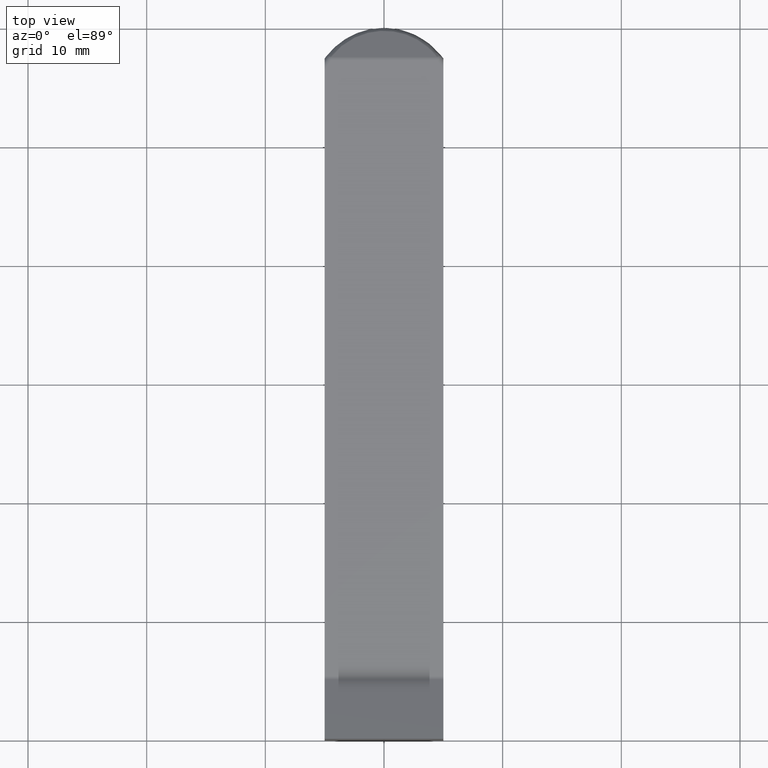
[diagram: clean part render]
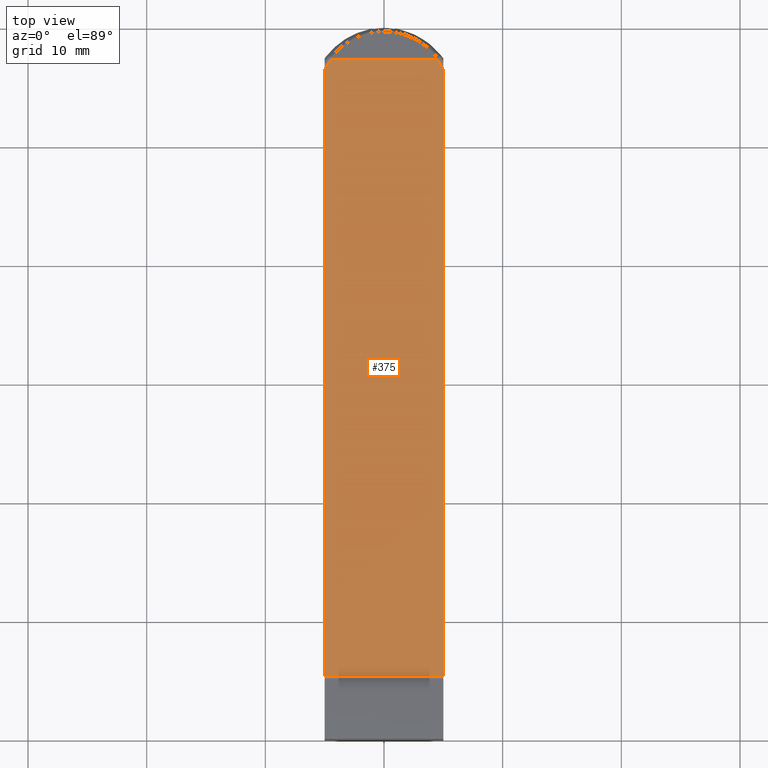
[diagram: same view with one face highlighted and labeled with its STEP entity id]
A machine part, top view. The second image highlights one B-rep face of the part: STEP entity #375.
In plain terms, the highlighted planar face has unit normal (0, -0, 1).
Its self-contained STEP definition (entity closure, byte-faithful):
#47=CIRCLE('',#417,5.61029034892354);
#48=CIRCLE('',#419,5.61029034892354);
#80=FACE_OUTER_BOUND('',#104,.T.);
#104=EDGE_LOOP('',(#326,#327,#328,#329,#330,#331));
#117=LINE('',#617,#139);
#120=LINE('',#690,#142);
#128=LINE('',#770,#150);
#130=LINE('',#773,#152);
#139=VECTOR('',#466,10.);
#142=VECTOR('',#507,10.);
#150=VECTOR('',#559,10.);
#152=VECTOR('',#563,10.);
#163=VERTEX_POINT('',#605);
#164=VERTEX_POINT('',#616);
#166=VERTEX_POINT('',#622);
#171=VERTEX_POINT('',#664);
#173=VERTEX_POINT('',#672);
#175=VERTEX_POINT('',#688);
#196=EDGE_CURVE('',#163,#164,#117,.T.);
#208=EDGE_CURVE('',#166,#163,#47,.T.);
#210=EDGE_CURVE('',#173,#171,#48,.T.);
#214=EDGE_CURVE('',#175,#173,#120,.T.);
#236=EDGE_CURVE('',#171,#166,#128,.T.);
#238=EDGE_CURVE('',#164,#175,#130,.T.);
#326=ORIENTED_EDGE('',*,*,#210,.F.);
#327=ORIENTED_EDGE('',*,*,#214,.F.);
#328=ORIENTED_EDGE('',*,*,#238,.F.);
#329=ORIENTED_EDGE('',*,*,#196,.F.);
#330=ORIENTED_EDGE('',*,*,#208,.F.);
#331=ORIENTED_EDGE('',*,*,#236,.F.);
#352=PLANE('',#445);
#375=ADVANCED_FACE('',(#80),#352,.T.);
#417=AXIS2_PLACEMENT_3D('',#669,#494,#495);
#419=AXIS2_PLACEMENT_3D('',#683,#498,#499);
#445=AXIS2_PLACEMENT_3D('',#772,#561,#562);
#466=DIRECTION('',(0.,-1.,-3.20587813129454E-16));
#494=DIRECTION('center_axis',(0.,3.20587813129454E-16,-1.));
#495=DIRECTION('ref_axis',(-0.798382545479793,-0.602150571761919,-1.97890475461431E-16));
#498=DIRECTION('center_axis',(0.,3.20587813129454E-16,-1.));
#499=DIRECTION('ref_axis',(0.798382545479793,-0.602150571761919,-1.97890475461431E-16));
#507=DIRECTION('',(0.,1.,3.20587813129454E-16));
#559=DIRECTION('',(1.,0.,0.));
#561=DIRECTION('center_axis',(0.,-3.20587813129454E-16,1.));
#562=DIRECTION('ref_axis',(0.,-1.,-3.20587813129454E-16));
#563=DIRECTION('',(-1.,0.,0.));
#605=CARTESIAN_POINT('',(5.,36.4343820856394,2.));
#616=CARTESIAN_POINT('',(5.,-14.6698730037844,1.99999999999998));
#617=CARTESIAN_POINT('',(5.,37.4019237886467,2.));
#622=CARTESIAN_POINT('',(4.47915788965429,37.2679491924311,2.));
#664=CARTESIAN_POINT('',(-4.47915788965429,37.2679491924311,2.));
#669=CARTESIAN_POINT('Origin',(0.,33.8897096510764,2.));
#672=CARTESIAN_POINT('',(-5.,36.4343820856394,2.));
#683=CARTESIAN_POINT('Origin',(0.,33.8897096510764,2.));
#688=CARTESIAN_POINT('',(-5.,-14.6698730037844,1.99999999999998));
#690=CARTESIAN_POINT('',(-5.,37.4019237886467,2.));
#770=CARTESIAN_POINT('',(0.,37.2679491924311,2.));
#772=CARTESIAN_POINT('Origin',(0.,37.4019237886467,2.));
#773=CARTESIAN_POINT('',(0.,-14.6698730037844,1.99999999999998));